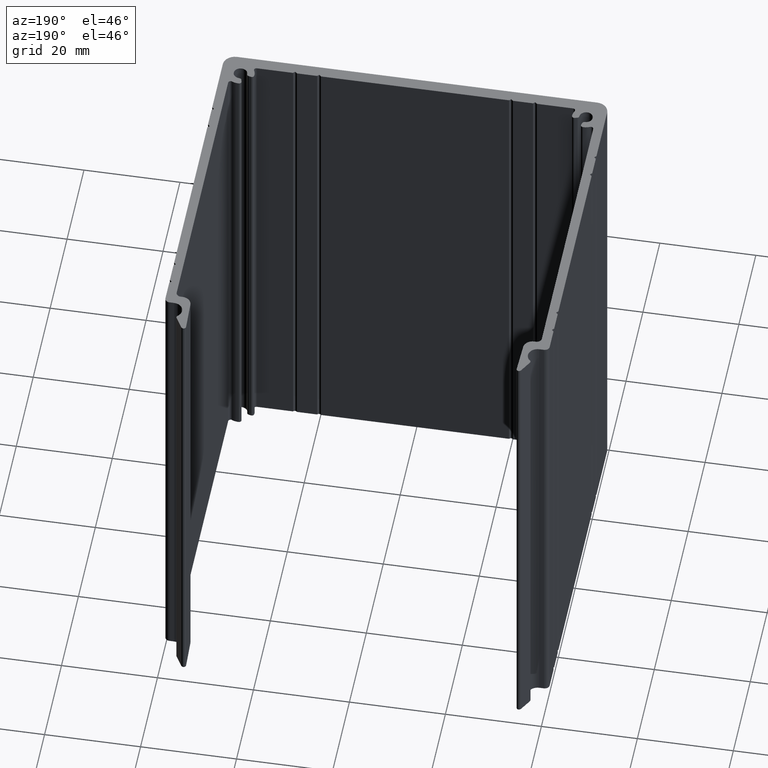
[diagram: clean part render]
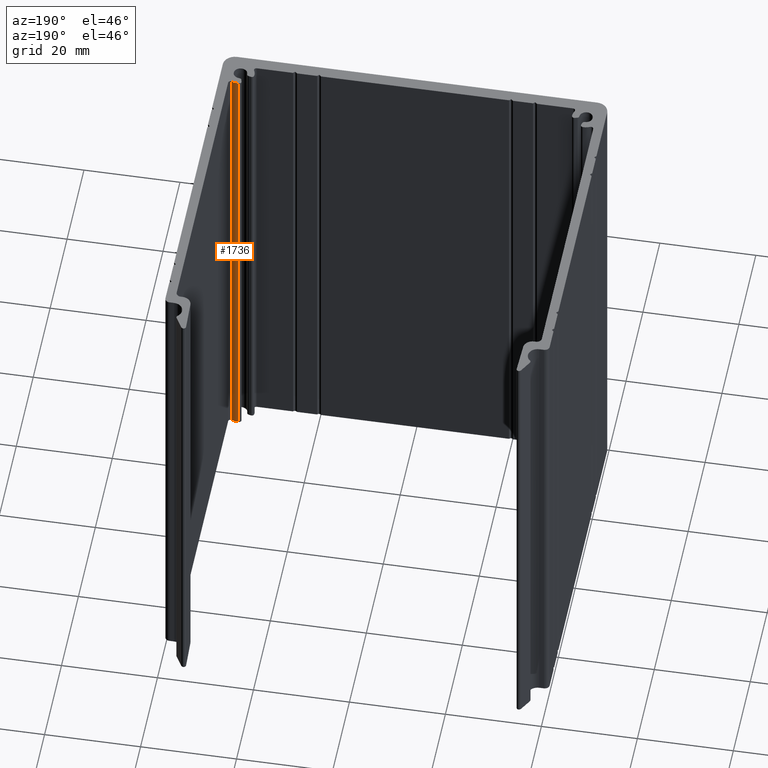
[diagram: same view with one face highlighted and labeled with its STEP entity id]
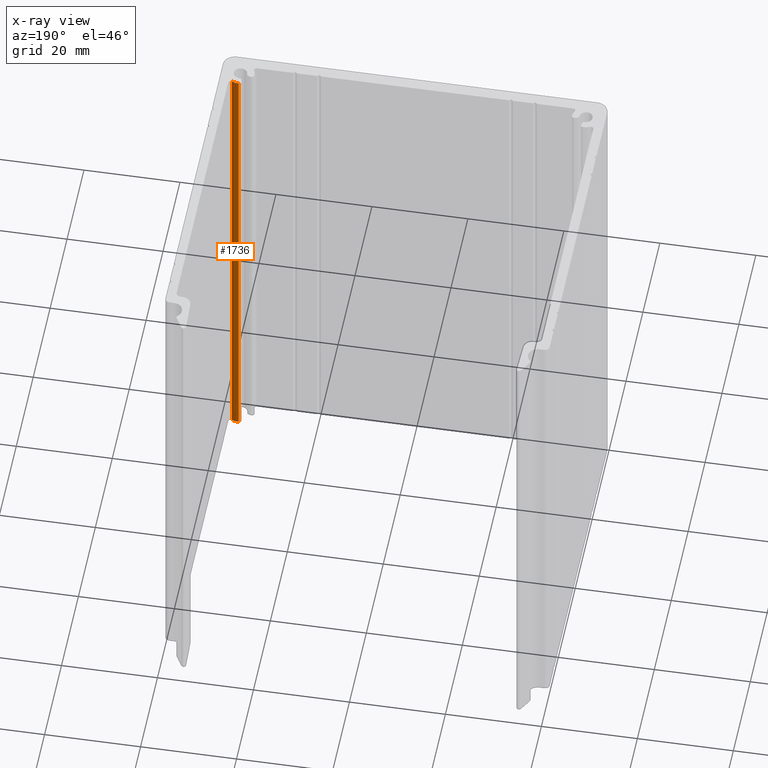
[diagram: x-ray of the same camera — body ghosted, the highlighted face saturated]
A machine part, auxiliary view. The second image highlights one B-rep face of the part: STEP entity #1736.
The next image is the same camera in x-ray: the body ghosted, the highlighted face saturated — about 0% of this face is hidden behind the body in this view.
In plain terms, the highlighted cylindrical surface (edge-blend (fillet) strip) has radius 2.9 mm, axis along (0, 0, 1).
Its self-contained STEP definition (entity closure, byte-faithful):
#61=CIRCLE('',#1894,2.90000000003836);
#62=CIRCLE('',#1895,2.90000000003836);
#102=CYLINDRICAL_SURFACE('',#1893,2.90000000003836);
#170=FACE_OUTER_BOUND('',#258,.T.);
#258=EDGE_LOOP('',(#1341,#1342,#1343,#1344));
#418=LINE('',#2797,#612);
#419=LINE('',#2803,#613);
#612=VECTOR('',#2283,10.);
#613=VECTOR('',#2290,10.);
#793=VERTEX_POINT('',#2793);
#794=VERTEX_POINT('',#2795);
#795=VERTEX_POINT('',#2799);
#796=VERTEX_POINT('',#2801);
#1024=EDGE_CURVE('',#793,#794,#418,.T.);
#1025=EDGE_CURVE('',#795,#793,#61,.T.);
#1026=EDGE_CURVE('',#796,#794,#62,.T.);
#1027=EDGE_CURVE('',#795,#796,#419,.T.);
#1341=ORIENTED_EDGE('',*,*,#1025,.T.);
#1342=ORIENTED_EDGE('',*,*,#1024,.T.);
#1343=ORIENTED_EDGE('',*,*,#1026,.F.);
#1344=ORIENTED_EDGE('',*,*,#1027,.F.);
#1736=ADVANCED_FACE('',(#170),#102,.T.);
#1893=AXIS2_PLACEMENT_3D('',#2798,#2284,#2285);
#1894=AXIS2_PLACEMENT_3D('',#2800,#2286,#2287);
#1895=AXIS2_PLACEMENT_3D('',#2802,#2288,#2289);
#2283=DIRECTION('',(0.,0.,1.));
#2284=DIRECTION('center_axis',(0.,0.,1.));
#2285=DIRECTION('ref_axis',(0.451767502595543,0.892135709182513,0.));
#2286=DIRECTION('center_axis',(0.,0.,1.));
#2287=DIRECTION('ref_axis',(0.451767502595543,0.892135709182513,0.));
#2288=DIRECTION('center_axis',(0.,0.,1.));
#2289=DIRECTION('ref_axis',(0.451767502595543,0.892135709182513,0.));
#2290=DIRECTION('',(0.,0.,1.));
#2793=CARTESIAN_POINT('',(35.8496657047263,7.39610788618545,0.));
#2795=CARTESIAN_POINT('',(35.8496657047263,7.39610788618545,100.));
#2797=CARTESIAN_POINT('',(35.8496657047263,7.39610788618545,0.));
#2798=CARTESIAN_POINT('Origin',(35.999862615102,4.50000000001545,0.));
#2799=CARTESIAN_POINT('',(37.3099883726464,7.08719355667895,0.));
#2800=CARTESIAN_POINT('Origin',(35.999862615102,4.50000000001545,0.));
#2801=CARTESIAN_POINT('',(37.3099883726464,7.08719355667895,100.));
#2802=CARTESIAN_POINT('Origin',(35.999862615102,4.50000000001545,100.));
#2803=CARTESIAN_POINT('',(37.3099883726464,7.08719355667895,0.));